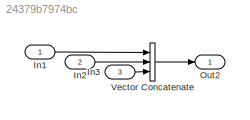
MODEL slx_24379b7974bc
KIND model
CONFIG AbsTol = auto
CONFIG EnableMultiTasking = on
CONFIG FixedStep = 0.1
CONFIG MaxStep = 1
CONFIG MinStep = auto
CONFIG RelTol = 1e-3
CONFIG SampleTimeConstraint = Unconstrained
CONFIG Solver = FixedStepAuto
CONFIG SolverName = FixedStepAuto
CONFIG StartTime = 0.0
CONFIG StopTime = 0
BLOCK [Inport] In1
  IconDisplay = Port number
BLOCK [Inport] In2
  IconDisplay = Port number
  Port = 2
BLOCK [Inport] In3
  IconDisplay = Port number
  Port = 3
BLOCK [Outport] Out2
  IconDisplay = Port number
BLOCK [Concatenate] Vector Concatenate
  NumInputs = 3
  Ports = [3, 1]
LINE In1:1 -> Vector Concatenate:1
LINE In2:1 -> Vector Concatenate:2
LINE In3:1 -> Vector Concatenate:3
LINE Vector Concatenate:1 -> Out2:1
